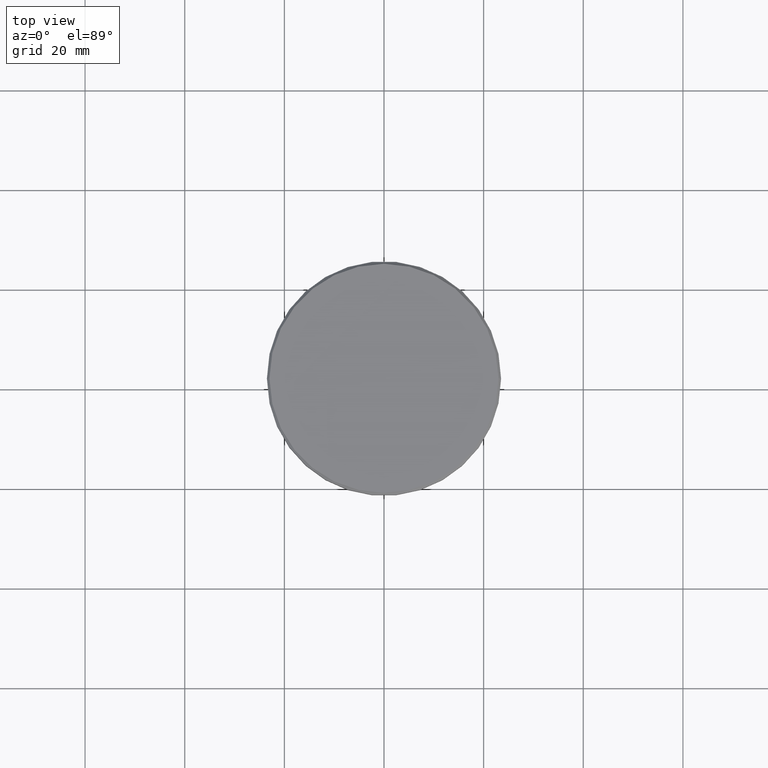
[diagram: clean part render]
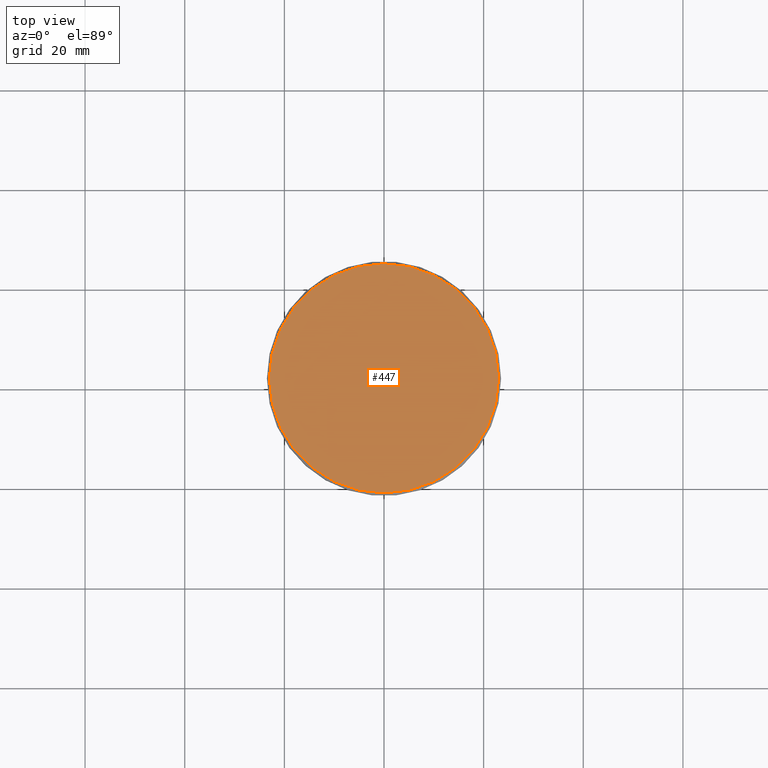
[diagram: same view with one face highlighted and labeled with its STEP entity id]
A machine part, top view. The second image highlights one B-rep face of the part: STEP entity #447.
In plain terms, the highlighted planar face has unit normal (0, -0, 1).
Its self-contained STEP definition (entity closure, byte-faithful):
#86 = CARTESIAN_POINT ( 'NONE',  ( -23.00000000000001066, 0.000000000000000000, 0.000000000000000000 ) ) ;
#93 = FACE_OUTER_BOUND ( 'NONE', #121, .T. ) ;
#121 = EDGE_LOOP ( 'NONE', ( #1175, #244 ) ) ;
#161 = DIRECTION ( 'NONE',  ( -0.000000000000000000, -0.000000000000000000, 1.000000000000000000 ) ) ;
#197 = AXIS2_PLACEMENT_3D ( 'NONE', #339, #161, #1068 ) ;
#244 = ORIENTED_EDGE ( 'NONE', *, *, #1056, .T. ) ;
#339 = CARTESIAN_POINT ( 'NONE',  ( 0.000000000000000000, 0.000000000000000000, 0.000000000000000000 ) ) ;
#355 = VERTEX_POINT ( 'NONE', #86 ) ;
#400 = VERTEX_POINT ( 'NONE', #1075 ) ;
#447 = ADVANCED_FACE ( 'NONE', ( #93 ), #550, .T. ) ;
#457 = DIRECTION ( 'NONE',  ( 1.000000000000000000, 0.000000000000000000, 0.000000000000000000 ) ) ;
#471 = EDGE_CURVE ( 'NONE', #355, #400, #564, .T. ) ;
#483 = CIRCLE ( 'NONE', #850, 23.00000000000001066 ) ;
#550 = PLANE ( 'NONE',  #1022 ) ;
#555 = DIRECTION ( 'NONE',  ( -0.000000000000000000, -0.000000000000000000, 1.000000000000000000 ) ) ;
#564 = CIRCLE ( 'NONE', #197, 23.00000000000001066 ) ;
#702 = DIRECTION ( 'NONE',  ( 1.000000000000000000, 0.000000000000000000, 0.000000000000000000 ) ) ;
#718 = CARTESIAN_POINT ( 'NONE',  ( 0.000000000000000000, 0.000000000000000000, 0.000000000000000000 ) ) ;
#800 = DIRECTION ( 'NONE',  ( 0.000000000000000000, -0.000000000000000000, 1.000000000000000000 ) ) ;
#827 = CARTESIAN_POINT ( 'NONE',  ( 0.000000000000000000, 0.000000000000000000, 0.000000000000000000 ) ) ;
#850 = AXIS2_PLACEMENT_3D ( 'NONE', #827, #555, #457 ) ;
#1022 = AXIS2_PLACEMENT_3D ( 'NONE', #718, #800, #702 ) ;
#1056 = EDGE_CURVE ( 'NONE', #400, #355, #483, .T. ) ;
#1068 = DIRECTION ( 'NONE',  ( 1.000000000000000000, 0.000000000000000000, 0.000000000000000000 ) ) ;
#1075 = CARTESIAN_POINT ( 'NONE',  ( 23.00000000000001066, 2.847303808017596928E-15, 0.000000000000000000 ) ) ;
#1175 = ORIENTED_EDGE ( 'NONE', *, *, #471, .T. ) ;